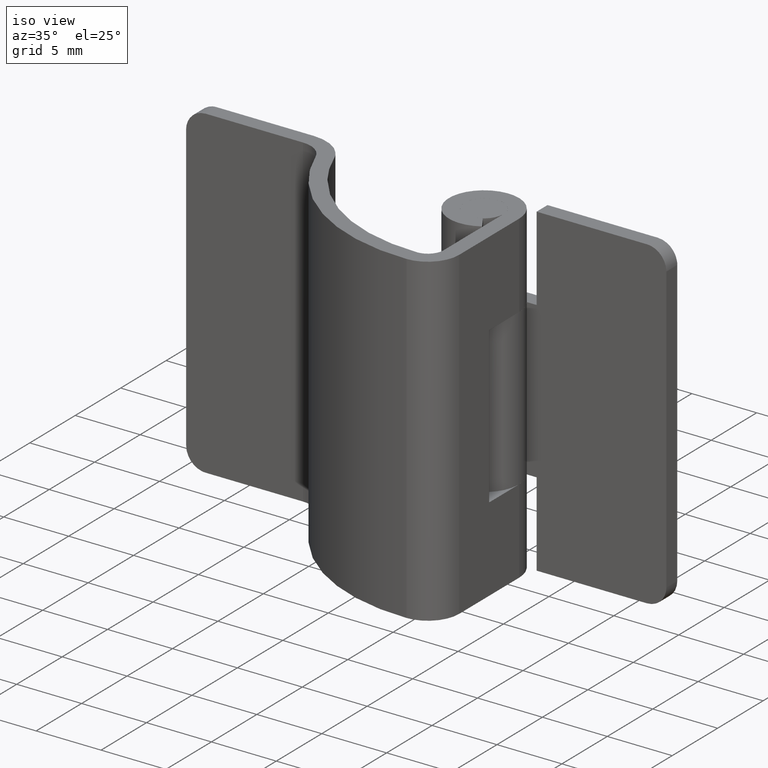
[diagram: clean part render]
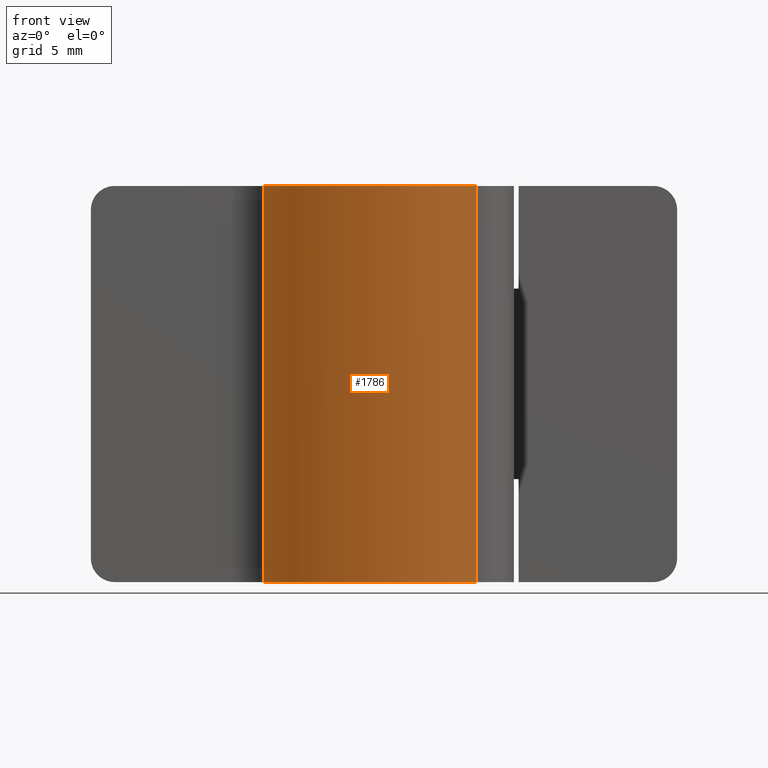
[diagram: tour spotlight — one face highlighted and labeled with its STEP entity id]
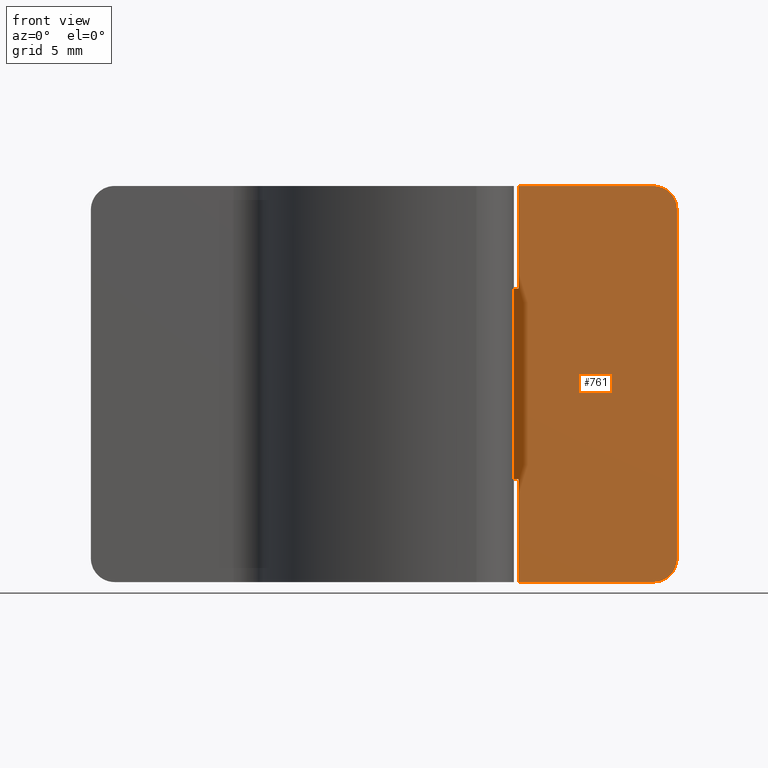
[diagram: tour spotlight — one face highlighted and labeled with its STEP entity id]
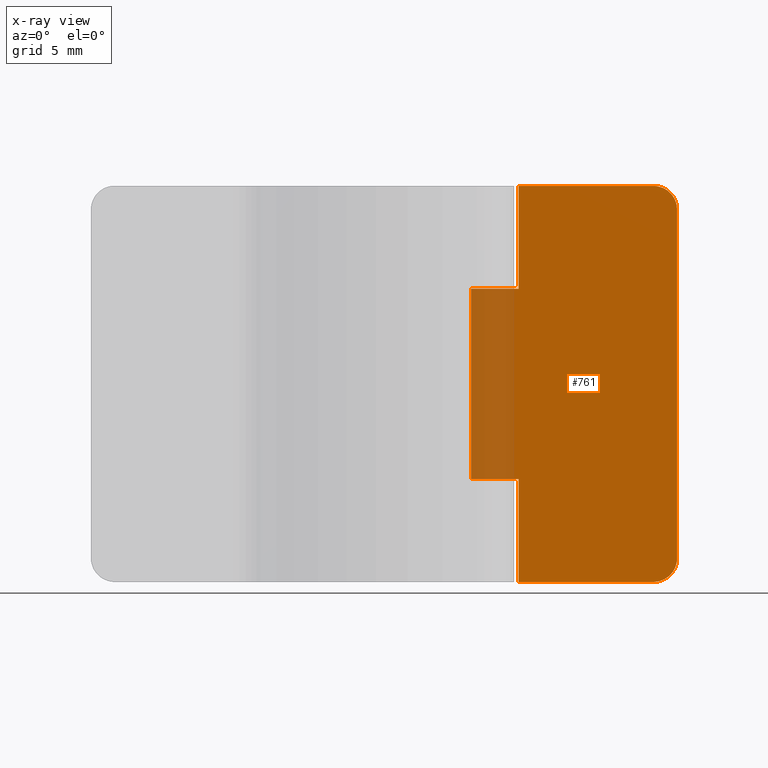
[diagram: x-ray of the same camera — body ghosted, this tour face saturated]
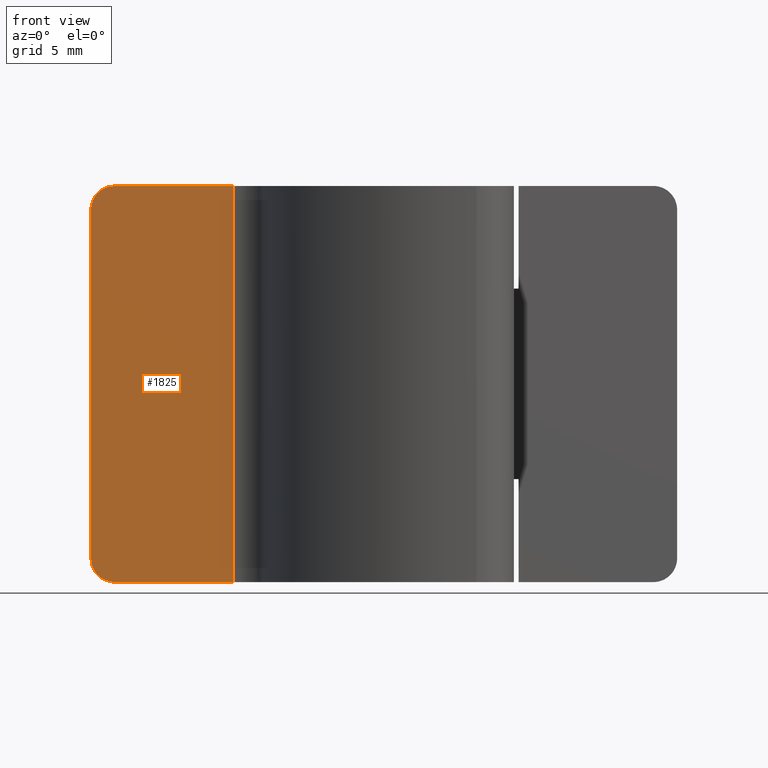
[diagram: tour spotlight — one face highlighted and labeled with its STEP entity id]
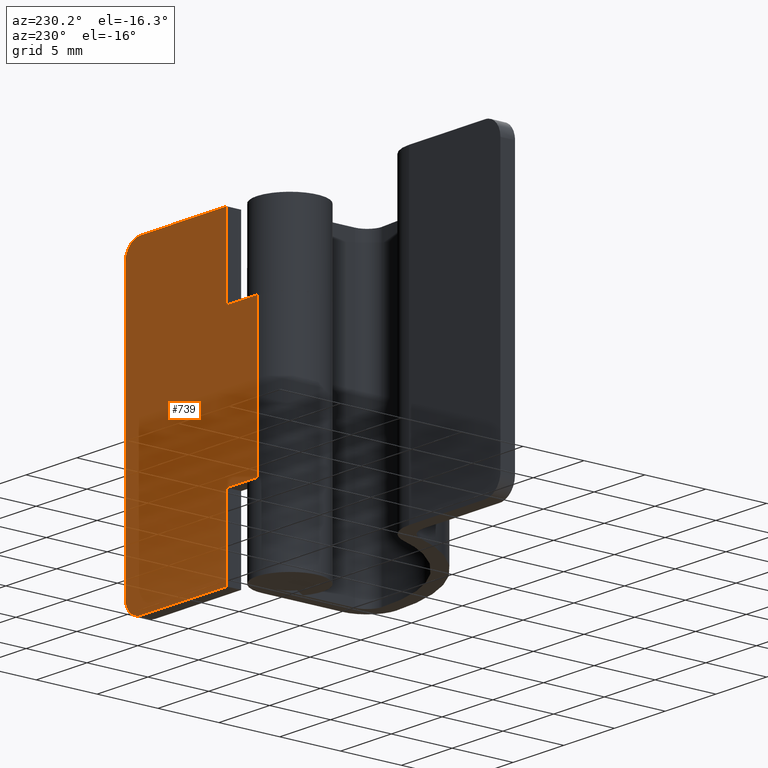
[diagram: tour spotlight — one face highlighted and labeled with its STEP entity id]
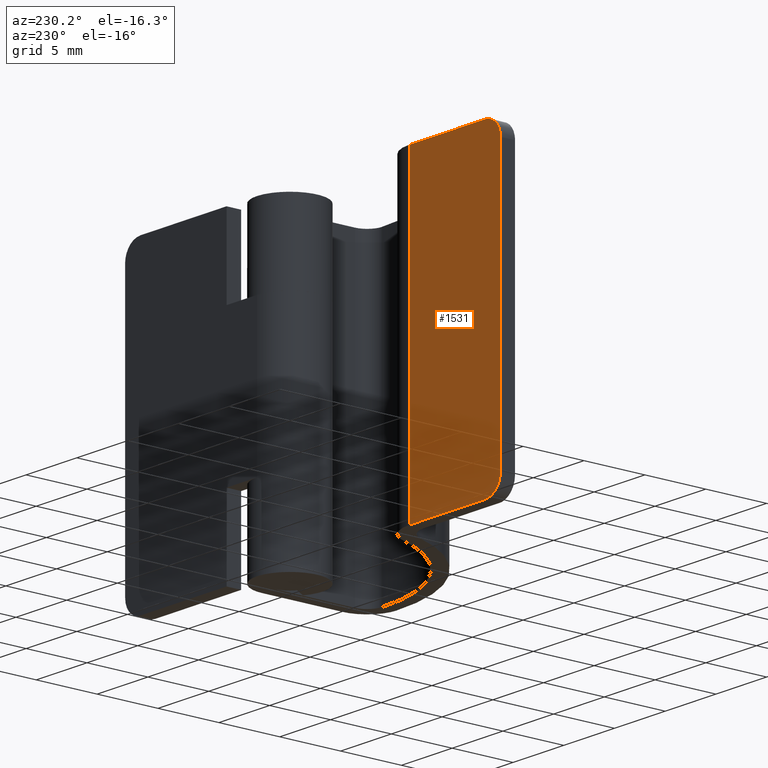
[diagram: tour spotlight — one face highlighted and labeled with its STEP entity id]
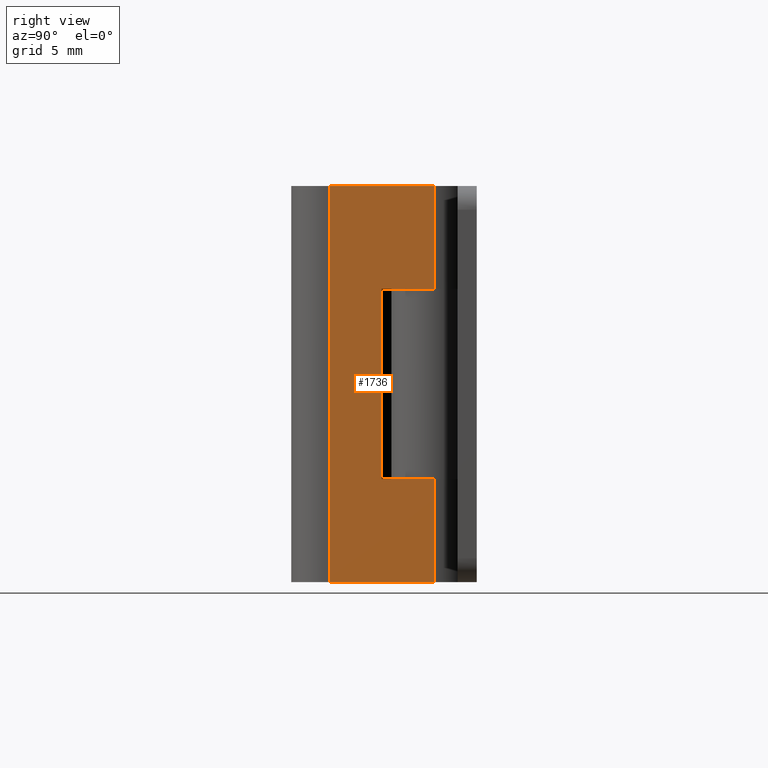
[diagram: tour spotlight — one face highlighted and labeled with its STEP entity id]
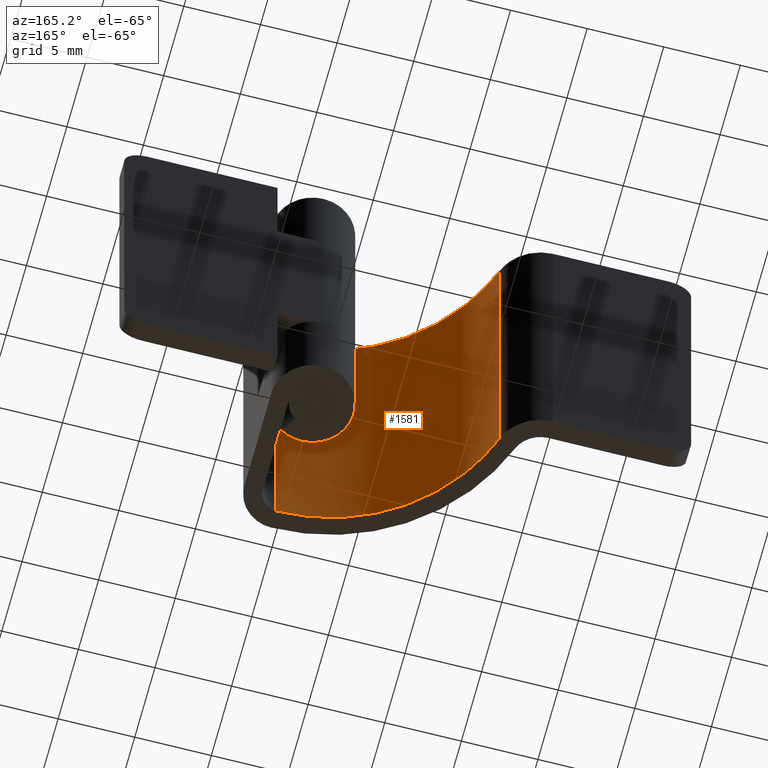
[diagram: tour spotlight — one face highlighted and labeled with its STEP entity id]
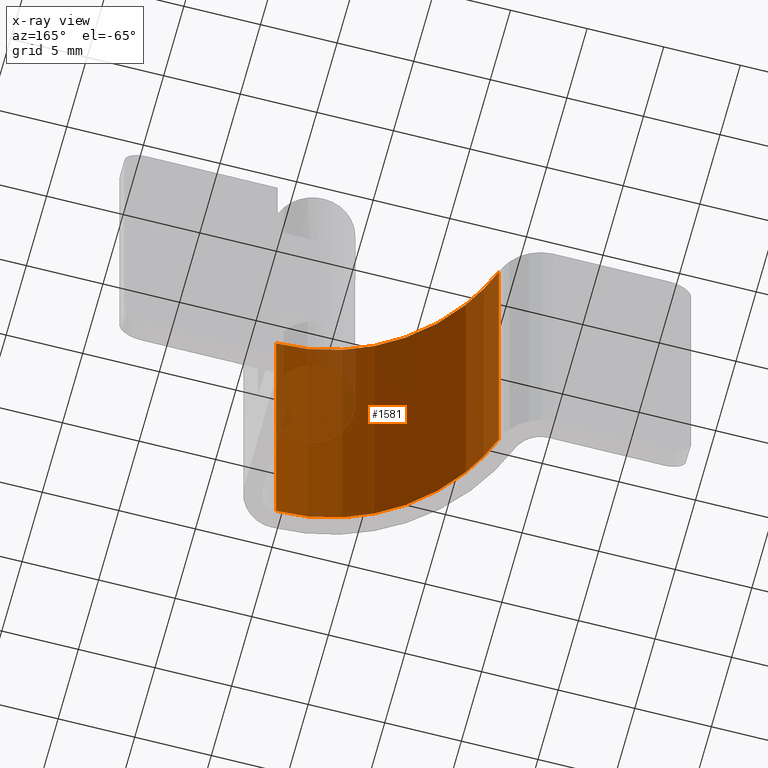
[diagram: x-ray of the same camera — body ghosted, this tour face saturated]
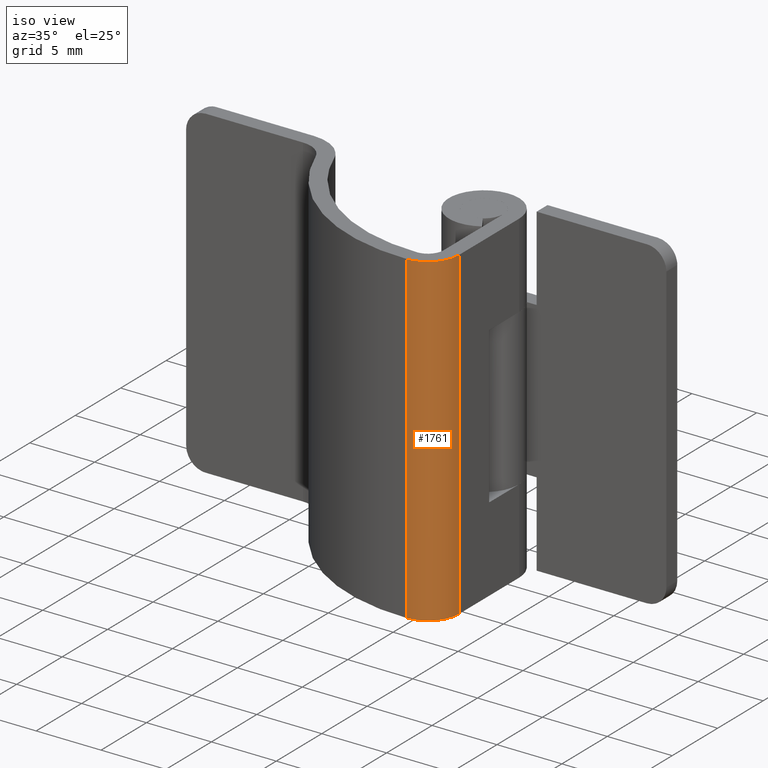
[diagram: tour spotlight — one face highlighted and labeled with its STEP entity id]
A machine part: a face-by-face anatomy tour. The part has 42 B-rep faces; the first image is the clean iso view, then the 8 largest visible faces are spotlighted one at a time (largest first), each with its STEP entity span.

Face 1 — front view, entity #1786. In plain terms, the highlighted face is a freeform B-spline surface patch.
Definition (entity closure, byte-faithful):
#1166=CARTESIAN_POINT('',(-13.127855933889640,0.203607777777776,25.000006999999950));
#1167=VERTEX_POINT('',#1166);
#1181=CARTESIAN_POINT('',(0.327577881356044,-8.999839294452860,25.000006999999950));
#1182=VERTEX_POINT('',#1181);
#1183=CARTESIAN_POINT('',(0.327577881356048,-8.999839294452874,25.000006999999950));
#1184=CARTESIAN_POINT('',(-9.625938804484882,-9.114232999671085,25.000006999999950));
#1185=CARTESIAN_POINT('',(-13.127855933889650,0.203607777777775,25.000006999999950));
#1193=(BOUNDED_CURVE()B_SPLINE_CURVE(2,(#1183,#1184,#1185),.UNSPECIFIED.,.F.,.U.)CURVE()GEOMETRIC_REPRESENTATION_ITEM()QUASI_UNIFORM_CURVE()RATIONAL_B_SPLINE_CURVE((1.0,0.818847747232917,1.0))REPRESENTATION_ITEM(''));
#1194=EDGE_CURVE('',#1182,#1167,#1193,.T.);
#1448=CARTESIAN_POINT('',(0.327577881356044,-8.999839294452860,0.0));
#1449=VERTEX_POINT('',#1448);
#1463=CARTESIAN_POINT('',(-13.127855933889640,0.203607777777776,0.0));
#1464=VERTEX_POINT('',#1463);
#1465=CARTESIAN_POINT('',(0.327577881356048,-8.999839294452874,0.0));
#1466=CARTESIAN_POINT('',(-9.625938804484882,-9.114232999671085,0.0));
#1467=CARTESIAN_POINT('',(-13.127855933889650,0.203607777777775,0.0));
#1475=(BOUNDED_CURVE()B_SPLINE_CURVE(2,(#1465,#1466,#1467),.UNSPECIFIED.,.F.,.U.)CURVE()GEOMETRIC_REPRESENTATION_ITEM()QUASI_UNIFORM_CURVE()RATIONAL_B_SPLINE_CURVE((1.0,0.818847747232917,1.0))REPRESENTATION_ITEM(''));
#1476=EDGE_CURVE('',#1449,#1464,#1475,.T.);
#1752=CARTESIAN_POINT('',(0.327577881356044,-8.999839294452860,0.0));
#1753=CARTESIAN_POINT('',(0.327577881356044,-8.999839294452860,25.000006999999950));
#1754=QUASI_UNIFORM_CURVE('',1,(#1752,#1753),.UNSPECIFIED.,.F.,.U.);
#1755=EDGE_CURVE('',#1449,#1182,#1754,.T.);
#1762=CARTESIAN_POINT('',(0.931738175385781,-8.980028683795853,-0.625000174999999));
#1763=CARTESIAN_POINT('',(0.931738175385781,-8.980028683795853,25.640632179374951));
#1764=CARTESIAN_POINT('',(-10.101438786933137,-9.577117822656479,-0.625000174999999));
#1765=CARTESIAN_POINT('',(-10.101438786933137,-9.577117822656479,25.640632179374951));
#1766=CARTESIAN_POINT('',(-13.391501224122113,0.971009901304225,-0.625000174999999));
#1767=CARTESIAN_POINT('',(-13.391501224122113,0.971009901304225,25.640632179374951));
#1775=(BOUNDED_SURFACE()B_SPLINE_SURFACE(1,2,((#1762,#1764,#1766),(#1763,#1765,#1767)),.UNSPECIFIED.,.F.,.F.,.U.)B_SPLINE_SURFACE_WITH_KNOTS((2,2),(3,3),(0.0,26.265632354374951),(0.0,19.495239183282120),.UNSPECIFIED.)GEOMETRIC_REPRESENTATION_ITEM()RATIONAL_B_SPLINE_SURFACE(((1.0,0.786329131347657,0.992685430684794),(1.0,0.786329131347657,0.992685430684794)))REPRESENTATION_ITEM('')SURFACE());
#1776=ORIENTED_EDGE('',*,*,#1194,.T.);
#1777=CARTESIAN_POINT('',(-13.127855933889640,0.203607777777776,0.0));
#1778=CARTESIAN_POINT('',(-13.127855933889640,0.203607777777776,25.000006999999950));
#1779=QUASI_UNIFORM_CURVE('',1,(#1777,#1778),.UNSPECIFIED.,.F.,.U.);
#1780=EDGE_CURVE('',#1464,#1167,#1779,.T.);
#1781=ORIENTED_EDGE('',*,*,#1780,.F.);
#1782=ORIENTED_EDGE('',*,*,#1476,.F.);
#1783=ORIENTED_EDGE('',*,*,#1755,.T.);
#1784=EDGE_LOOP('',(#1776,#1781,#1782,#1783));
#1785=FACE_OUTER_BOUND('',#1784,.T.);
#1786=ADVANCED_FACE('',(#1785),#1775,.T.);

Face 2 — front view, entity #761. An x-ray twin of the same camera follows (body ghosted, this face saturated) — the face is partly hidden behind the body. In plain terms, the highlighted face is a freeform B-spline surface patch.
Definition (entity closure, byte-faithful):
#296=CARTESIAN_POINT('',(-2.755372E-016,1.500000000000000,18.500006999999901));
#297=VERTEX_POINT('',#296);
#319=CARTESIAN_POINT('',(3.0,1.500000000000000,18.500006999999950));
#320=VERTEX_POINT('',#319);
#321=CARTESIAN_POINT('',(3.0,1.500000000000000,18.500006999999950));
#322=CARTESIAN_POINT('',(-2.755372E-016,1.500000000000000,18.500006999999901));
#323=QUASI_UNIFORM_CURVE('',1,(#321,#322),.UNSPECIFIED.,.F.,.U.);
#324=EDGE_CURVE('',#320,#297,#323,.T.);
#375=CARTESIAN_POINT('',(3.0,1.500000000000000,25.000006999999950));
#376=VERTEX_POINT('',#375);
#377=CARTESIAN_POINT('',(3.0,1.500000000000000,25.000006999999950));
#378=CARTESIAN_POINT('',(3.0,1.500000000000000,18.500006999999950));
#379=QUASI_UNIFORM_CURVE('',1,(#377,#378),.UNSPECIFIED.,.F.,.U.);
#380=EDGE_CURVE('',#376,#320,#379,.T.);
#432=CARTESIAN_POINT('',(3.0,1.500000000000000,6.500000000000000));
#433=VERTEX_POINT('',#432);
#439=CARTESIAN_POINT('',(-2.755372E-016,1.500000000000000,6.500000000000000));
#440=VERTEX_POINT('',#439);
#441=CARTESIAN_POINT('',(3.0,1.500000000000000,6.500000000000000));
#442=CARTESIAN_POINT('',(-2.755372E-016,1.500000000000000,6.500000000000000));
#443=QUASI_UNIFORM_CURVE('',1,(#441,#442),.UNSPECIFIED.,.F.,.U.);
#444=EDGE_CURVE('',#433,#440,#443,.T.);
#488=CARTESIAN_POINT('',(3.0,1.500000000000000,0.0));
#489=VERTEX_POINT('',#488);
#495=CARTESIAN_POINT('',(3.0,1.500000000000000,0.0));
#496=CARTESIAN_POINT('',(3.0,1.500000000000000,6.500000000000000));
#497=QUASI_UNIFORM_CURVE('',1,(#495,#496),.UNSPECIFIED.,.F.,.U.);
#498=EDGE_CURVE('',#489,#433,#497,.T.);
#517=CARTESIAN_POINT('',(13.0,1.500000000000000,23.500006999999901));
#518=VERTEX_POINT('',#517);
#519=CARTESIAN_POINT('',(11.500000000000000,1.500000000000000,25.000006999999950));
#520=VERTEX_POINT('',#519);
#521=CARTESIAN_POINT('',(13.0,1.500000000000000,23.500006999999901));
#522=CARTESIAN_POINT('',(13.000000000000002,1.500000000000000,25.000006999999901));
#523=CARTESIAN_POINT('',(11.500000000000000,1.500000000000000,25.000006999999901));
#531=(BOUNDED_CURVE()B_SPLINE_CURVE(2,(#521,#522,#523),.UNSPECIFIED.,.F.,.U.)CURVE()GEOMETRIC_REPRESENTATION_ITEM()QUASI_UNIFORM_CURVE()RATIONAL_B_SPLINE_CURVE((1.0,0.707106781186548,1.0))REPRESENTATION_ITEM(''));
#532=EDGE_CURVE('',#518,#520,#531,.T.);
#578=CARTESIAN_POINT('',(11.500000000000000,1.500000000000000,0.0));
#579=VERTEX_POINT('',#578);
#580=CARTESIAN_POINT('',(13.0,1.500000000000000,1.499999999999946));
#581=VERTEX_POINT('',#580);
#582=CARTESIAN_POINT('',(11.500000000000000,1.500000000000000,0.0));
#583=CARTESIAN_POINT('',(13.000000000000002,1.500000000000000,-5.399327E-014));
#584=CARTESIAN_POINT('',(13.0,1.500000000000000,1.499999999999946));
#592=(BOUNDED_CURVE()B_SPLINE_CURVE(2,(#582,#583,#584),.UNSPECIFIED.,.F.,.U.)CURVE()GEOMETRIC_REPRESENTATION_ITEM()QUASI_UNIFORM_CURVE()RATIONAL_B_SPLINE_CURVE((1.0,0.707106781186548,1.0))REPRESENTATION_ITEM(''));
#593=EDGE_CURVE('',#579,#581,#592,.T.);
#630=CARTESIAN_POINT('',(13.0,1.500000000000000,1.499999999999946));
#631=CARTESIAN_POINT('',(13.0,1.500000000000000,23.500006999999901));
#632=QUASI_UNIFORM_CURVE('',1,(#630,#631),.UNSPECIFIED.,.F.,.U.);
#633=EDGE_CURVE('',#581,#518,#632,.T.);
#650=CARTESIAN_POINT('',(3.0,1.500000000000000,0.0));
#651=CARTESIAN_POINT('',(11.500000000000000,1.500000000000000,0.0));
#652=QUASI_UNIFORM_CURVE('',1,(#650,#651),.UNSPECIFIED.,.F.,.U.);
#653=EDGE_CURVE('',#489,#579,#652,.T.);
#671=CARTESIAN_POINT('',(3.0,1.500000000000000,25.000006999999950));
#672=CARTESIAN_POINT('',(11.500000000000000,1.500000000000000,25.000006999999950));
#673=QUASI_UNIFORM_CURVE('',1,(#671,#672),.UNSPECIFIED.,.F.,.U.);
#674=EDGE_CURVE('',#376,#520,#673,.T.);
#740=CARTESIAN_POINT('',(-0.649349974803478,1.500000000000000,26.248758005241619));
#741=CARTESIAN_POINT('',(-0.649349974803478,1.500000000000000,-1.248751005241666));
#742=CARTESIAN_POINT('',(13.649350323490649,1.500000000000000,26.248758005241619));
#743=CARTESIAN_POINT('',(13.649350323490649,1.500000000000000,-1.248751005241666));
#744=B_SPLINE_SURFACE_WITH_KNOTS('',1,1,((#740,#742),(#741,#743)),.UNSPECIFIED.,.F.,.F.,.U.,(2,2),(2,2),(0.0,27.497509010483292),(0.0,14.298700298294129),.UNSPECIFIED.);
#745=ORIENTED_EDGE('',*,*,#674,.F.);
#746=ORIENTED_EDGE('',*,*,#380,.T.);
#747=ORIENTED_EDGE('',*,*,#324,.T.);
#748=CARTESIAN_POINT('',(-2.755372E-016,1.500000000000000,6.500000000000000));
#749=CARTESIAN_POINT('',(-2.755372E-016,1.500000000000000,18.500006999999901));
#750=QUASI_UNIFORM_CURVE('',1,(#748,#749),.UNSPECIFIED.,.F.,.U.);
#751=EDGE_CURVE('',#440,#297,#750,.T.);
#752=ORIENTED_EDGE('',*,*,#751,.F.);
#753=ORIENTED_EDGE('',*,*,#444,.F.);
#754=ORIENTED_EDGE('',*,*,#498,.F.);
#755=ORIENTED_EDGE('',*,*,#653,.T.);
#756=ORIENTED_EDGE('',*,*,#593,.T.);
#757=ORIENTED_EDGE('',*,*,#633,.T.);
#758=ORIENTED_EDGE('',*,*,#532,.T.);
#759=EDGE_LOOP('',(#745,#746,#747,#752,#753,#754,#755,#756,#757,#758));
#760=FACE_OUTER_BOUND('',#759,.T.);
#761=ADVANCED_FACE('',(#760),#744,.T.);

Face 3 — front view, entity #1825. In plain terms, the highlighted face is a freeform B-spline surface patch.
Definition (entity closure, byte-faithful):
#1055=CARTESIAN_POINT('',(-24.0,1.500000000000000,23.500006999999901));
#1056=VERTEX_POINT('',#1055);
#1062=CARTESIAN_POINT('',(-22.500000000000000,1.500000000000000,25.000006999999950));
#1063=VERTEX_POINT('',#1062);
#1064=CARTESIAN_POINT('',(-22.500000000000000,1.500000000000000,25.000006999999901));
#1065=CARTESIAN_POINT('',(-23.999999999999996,1.500000000000000,25.000006999999901));
#1066=CARTESIAN_POINT('',(-24.0,1.500000000000000,23.500006999999901));
#1074=(BOUNDED_CURVE()B_SPLINE_CURVE(2,(#1064,#1065,#1066),.UNSPECIFIED.,.F.,.U.)CURVE()GEOMETRIC_REPRESENTATION_ITEM()QUASI_UNIFORM_CURVE()RATIONAL_B_SPLINE_CURVE((1.0,0.707106781186548,1.0))REPRESENTATION_ITEM(''));
#1075=EDGE_CURVE('',#1063,#1056,#1074,.T.);
#1116=CARTESIAN_POINT('',(-22.500000000000000,1.500000000000000,0.0));
#1117=VERTEX_POINT('',#1116);
#1123=CARTESIAN_POINT('',(-24.0,1.500000000000000,1.499999999999946));
#1124=VERTEX_POINT('',#1123);
#1125=CARTESIAN_POINT('',(-24.0,1.500000000000000,1.499999999999946));
#1126=CARTESIAN_POINT('',(-23.999999999999996,1.500000000000000,-5.399327E-014));
#1127=CARTESIAN_POINT('',(-22.500000000000000,1.500000000000000,-5.399327E-014));
#1135=(BOUNDED_CURVE()B_SPLINE_CURVE(2,(#1125,#1126,#1127),.UNSPECIFIED.,.F.,.U.)CURVE()GEOMETRIC_REPRESENTATION_ITEM()QUASI_UNIFORM_CURVE()RATIONAL_B_SPLINE_CURVE((1.0,0.707106781186548,1.0))REPRESENTATION_ITEM(''));
#1136=EDGE_CURVE('',#1124,#1117,#1135,.T.);
#1159=CARTESIAN_POINT('',(-15.000003389367050,1.500000000000000,25.000006999999950));
#1160=VERTEX_POINT('',#1159);
#1161=CARTESIAN_POINT('',(-22.500000000000000,1.500000000000000,25.000006999999950));
#1162=CARTESIAN_POINT('',(-15.000003389367050,1.500000000000000,25.000006999999950));
#1163=QUASI_UNIFORM_CURVE('',1,(#1161,#1162),.UNSPECIFIED.,.F.,.U.);
#1164=EDGE_CURVE('',#1063,#1160,#1163,.T.);
#1325=CARTESIAN_POINT('',(-15.000003389367050,1.500000000000000,0.0));
#1326=VERTEX_POINT('',#1325);
#1327=CARTESIAN_POINT('',(-22.500000000000000,1.500000000000000,0.0));
#1328=CARTESIAN_POINT('',(-15.000003389367050,1.500000000000000,0.0));
#1329=QUASI_UNIFORM_CURVE('',1,(#1327,#1328),.UNSPECIFIED.,.F.,.U.);
#1330=EDGE_CURVE('',#1117,#1326,#1329,.T.);
#1505=CARTESIAN_POINT('',(-24.0,1.500000000000000,1.499999999999946));
#1506=CARTESIAN_POINT('',(-24.0,1.500000000000000,23.500006999999901));
#1507=QUASI_UNIFORM_CURVE('',1,(#1505,#1506),.UNSPECIFIED.,.F.,.U.);
#1508=EDGE_CURVE('',#1124,#1056,#1507,.T.);
#1802=CARTESIAN_POINT('',(-15.000003389367050,1.500000000000000,0.0));
#1803=CARTESIAN_POINT('',(-15.000003389367050,1.500000000000000,25.000006999999950));
#1804=QUASI_UNIFORM_CURVE('',1,(#1802,#1803),.UNSPECIFIED.,.F.,.U.);
#1805=EDGE_CURVE('',#1326,#1160,#1804,.T.);
#1812=CARTESIAN_POINT('',(-24.449549781103070,1.500000000000000,26.248758005241619));
#1813=CARTESIAN_POINT('',(-24.449549781103070,1.500000000000000,-1.248751005241666));
#1814=CARTESIAN_POINT('',(-14.550454010595180,1.500000000000000,26.248758005241619));
#1815=CARTESIAN_POINT('',(-14.550454010595180,1.500000000000000,-1.248751005241666));
#1816=B_SPLINE_SURFACE_WITH_KNOTS('',1,1,((#1812,#1814),(#1813,#1815)),.UNSPECIFIED.,.F.,.F.,.U.,(2,2),(2,2),(0.0,27.497509010483292),(0.0,9.899095770507890),.UNSPECIFIED.);
#1817=ORIENTED_EDGE('',*,*,#1508,.F.);
#1818=ORIENTED_EDGE('',*,*,#1136,.T.);
#1819=ORIENTED_EDGE('',*,*,#1330,.T.);
#1820=ORIENTED_EDGE('',*,*,#1805,.T.);
#1821=ORIENTED_EDGE('',*,*,#1164,.F.);
#1822=ORIENTED_EDGE('',*,*,#1075,.T.);
#1823=EDGE_LOOP('',(#1817,#1818,#1819,#1820,#1821,#1822));
#1824=FACE_OUTER_BOUND('',#1823,.T.);
#1825=ADVANCED_FACE('',(#1824),#1816,.T.);

Face 4 — auxiliary view, entity #739. In plain terms, the highlighted face is a freeform B-spline surface patch.
Definition (entity closure, byte-faithful):
#326=CARTESIAN_POINT('',(3.0,2.700001000000000,18.500006999999950));
#327=VERTEX_POINT('',#326);
#333=CARTESIAN_POINT('',(-4.959658E-016,2.700001000000000,18.500006999999950));
#334=VERTEX_POINT('',#333);
#335=CARTESIAN_POINT('',(-4.959658E-016,2.700001000000000,18.500006999999950));
#336=CARTESIAN_POINT('',(3.0,2.700001000000000,18.500006999999950));
#337=QUASI_UNIFORM_CURVE('',1,(#335,#336),.UNSPECIFIED.,.F.,.U.);
#338=EDGE_CURVE('',#334,#327,#337,.T.);
#382=CARTESIAN_POINT('',(3.0,2.700001000000000,25.000006999999901));
#383=VERTEX_POINT('',#382);
#389=CARTESIAN_POINT('',(3.0,2.700001000000000,25.000006999999901));
#390=CARTESIAN_POINT('',(3.0,2.700001000000000,18.500006999999950));
#391=QUASI_UNIFORM_CURVE('',1,(#389,#390),.UNSPECIFIED.,.F.,.U.);
#392=EDGE_CURVE('',#383,#327,#391,.T.);
#404=CARTESIAN_POINT('',(-4.959658E-016,2.700001000000000,6.500000000000000));
#405=VERTEX_POINT('',#404);
#425=CARTESIAN_POINT('',(3.0,2.700001000000000,6.500000000000000));
#426=VERTEX_POINT('',#425);
#427=CARTESIAN_POINT('',(-4.959658E-016,2.700001000000000,6.500000000000000));
#428=CARTESIAN_POINT('',(3.0,2.700001000000000,6.500000000000000));
#429=QUASI_UNIFORM_CURVE('',1,(#427,#428),.UNSPECIFIED.,.F.,.U.);
#430=EDGE_CURVE('',#405,#426,#429,.T.);
#481=CARTESIAN_POINT('',(3.0,2.700001000000000,0.0));
#482=VERTEX_POINT('',#481);
#483=CARTESIAN_POINT('',(3.0,2.700001000000000,0.0));
#484=CARTESIAN_POINT('',(3.0,2.700001000000000,6.500000000000000));
#485=QUASI_UNIFORM_CURVE('',1,(#483,#484),.UNSPECIFIED.,.F.,.U.);
#486=EDGE_CURVE('',#482,#426,#485,.T.);
#534=CARTESIAN_POINT('',(13.0,2.700001000000000,23.500006999999901));
#535=VERTEX_POINT('',#534);
#541=CARTESIAN_POINT('',(11.500000000000000,2.700001000000000,25.000006999999950));
#542=VERTEX_POINT('',#541);
#543=CARTESIAN_POINT('',(11.500000000000000,2.700001000000000,25.000006999999901));
#544=CARTESIAN_POINT('',(13.000000000000002,2.700001000000000,25.000006999999901));
#545=CARTESIAN_POINT('',(13.0,2.700001000000000,23.500006999999901));
#553=(BOUNDED_CURVE()B_SPLINE_CURVE(2,(#543,#544,#545),.UNSPECIFIED.,.F.,.U.)CURVE()GEOMETRIC_REPRESENTATION_ITEM()QUASI_UNIFORM_CURVE()RATIONAL_B_SPLINE_CURVE((1.0,0.707106781186548,1.0))REPRESENTATION_ITEM(''));
#554=EDGE_CURVE('',#542,#535,#553,.T.);
#595=CARTESIAN_POINT('',(11.500000000000000,2.700001000000000,0.0));
#596=VERTEX_POINT('',#595);
#602=CARTESIAN_POINT('',(13.0,2.700001000000000,1.499999999999946));
#603=VERTEX_POINT('',#602);
#604=CARTESIAN_POINT('',(13.0,2.700001000000000,1.499999999999946));
#605=CARTESIAN_POINT('',(13.000000000000002,2.700001000000000,-5.399327E-014));
#606=CARTESIAN_POINT('',(11.500000000000000,2.700001000000000,0.0));
#614=(BOUNDED_CURVE()B_SPLINE_CURVE(2,(#604,#605,#606),.UNSPECIFIED.,.F.,.U.)CURVE()GEOMETRIC_REPRESENTATION_ITEM()QUASI_UNIFORM_CURVE()RATIONAL_B_SPLINE_CURVE((1.0,0.707106781186548,1.0))REPRESENTATION_ITEM(''));
#615=EDGE_CURVE('',#603,#596,#614,.T.);
#636=CARTESIAN_POINT('',(13.0,2.700001000000000,1.499999999999946));
#637=CARTESIAN_POINT('',(13.0,2.700001000000000,23.500006999999901));
#638=QUASI_UNIFORM_CURVE('',1,(#636,#637),.UNSPECIFIED.,.F.,.U.);
#639=EDGE_CURVE('',#603,#535,#638,.T.);
#656=CARTESIAN_POINT('',(11.500000000000000,2.700001000000000,0.0));
#657=CARTESIAN_POINT('',(3.0,2.700001000000000,0.0));
#658=QUASI_UNIFORM_CURVE('',1,(#656,#657),.UNSPECIFIED.,.F.,.U.);
#659=EDGE_CURVE('',#596,#482,#658,.T.);
#677=CARTESIAN_POINT('',(11.500000000000000,2.700001000000000,25.000006999999950));
#678=CARTESIAN_POINT('',(3.0,2.700001000000000,25.000006999999901));
#679=QUASI_UNIFORM_CURVE('',1,(#677,#678),.UNSPECIFIED.,.F.,.U.);
#680=EDGE_CURVE('',#542,#383,#679,.T.);
#708=CARTESIAN_POINT('',(-4.959658E-016,2.700001000000000,6.500000000000000));
#709=CARTESIAN_POINT('',(-4.959658E-016,2.700001000000000,18.500006999999950));
#710=QUASI_UNIFORM_CURVE('',1,(#708,#709),.UNSPECIFIED.,.F.,.U.);
#711=EDGE_CURVE('',#405,#334,#710,.T.);
#722=CARTESIAN_POINT('',(-0.649349974803480,2.700001000000000,-1.248750301195132));
#723=CARTESIAN_POINT('',(-0.649349974803480,2.700001000000000,26.248757971747530));
#724=CARTESIAN_POINT('',(13.649350323490649,2.700001000000000,-1.248750301195132));
#725=CARTESIAN_POINT('',(13.649350323490649,2.700001000000000,26.248757971747530));
#726=B_SPLINE_SURFACE_WITH_KNOTS('',1,1,((#722,#724),(#723,#725)),.UNSPECIFIED.,.F.,.F.,.U.,(2,2),(2,2),(0.0,27.497508272942660),(0.0,14.298700298294129),.UNSPECIFIED.);
#727=ORIENTED_EDGE('',*,*,#338,.T.);
#728=ORIENTED_EDGE('',*,*,#392,.F.);
#729=ORIENTED_EDGE('',*,*,#680,.F.);
#730=ORIENTED_EDGE('',*,*,#554,.T.);
#731=ORIENTED_EDGE('',*,*,#639,.F.);
#732=ORIENTED_EDGE('',*,*,#615,.T.);
#733=ORIENTED_EDGE('',*,*,#659,.T.);
#734=ORIENTED_EDGE('',*,*,#486,.T.);
#735=ORIENTED_EDGE('',*,*,#430,.F.);
#736=ORIENTED_EDGE('',*,*,#711,.T.);
#737=EDGE_LOOP('',(#727,#728,#729,#730,#731,#732,#733,#734,#735,#736));
#738=FACE_OUTER_BOUND('',#737,.T.);
#739=ADVANCED_FACE('',(#738),#726,.T.);

Face 5 — auxiliary view, entity #1531. In plain terms, the highlighted face is a freeform B-spline surface patch.
Definition (entity closure, byte-faithful):
#1038=CARTESIAN_POINT('',(-24.0,2.700001000000000,23.500006999999901));
#1039=VERTEX_POINT('',#1038);
#1040=CARTESIAN_POINT('',(-22.500000000000000,2.700001000000000,25.000006999999950));
#1041=VERTEX_POINT('',#1040);
#1042=CARTESIAN_POINT('',(-24.0,2.700001000000000,23.500006999999901));
#1043=CARTESIAN_POINT('',(-23.999999999999996,2.700001000000000,25.000006999999901));
#1044=CARTESIAN_POINT('',(-22.500000000000000,2.700001000000000,25.000006999999901));
#1052=(BOUNDED_CURVE()B_SPLINE_CURVE(2,(#1042,#1043,#1044),.UNSPECIFIED.,.F.,.U.)CURVE()GEOMETRIC_REPRESENTATION_ITEM()QUASI_UNIFORM_CURVE()RATIONAL_B_SPLINE_CURVE((1.0,0.707106781186548,1.0))REPRESENTATION_ITEM(''));
#1053=EDGE_CURVE('',#1039,#1041,#1052,.T.);
#1099=CARTESIAN_POINT('',(-22.500000000000000,2.700001000000000,0.0));
#1100=VERTEX_POINT('',#1099);
#1101=CARTESIAN_POINT('',(-24.0,2.700001000000000,1.499999999999946));
#1102=VERTEX_POINT('',#1101);
#1103=CARTESIAN_POINT('',(-22.500000000000000,2.700001000000000,-5.399327E-014));
#1104=CARTESIAN_POINT('',(-23.999999999999996,2.700001000000000,-5.399327E-014));
#1105=CARTESIAN_POINT('',(-24.0,2.700001000000000,1.499999999999946));
#1113=(BOUNDED_CURVE()B_SPLINE_CURVE(2,(#1103,#1104,#1105),.UNSPECIFIED.,.F.,.U.)CURVE()GEOMETRIC_REPRESENTATION_ITEM()QUASI_UNIFORM_CURVE()RATIONAL_B_SPLINE_CURVE((1.0,0.707106781186548,1.0))REPRESENTATION_ITEM(''));
#1114=EDGE_CURVE('',#1100,#1102,#1113,.T.);
#1151=CARTESIAN_POINT('',(-15.000003765196301,2.700001000000000,25.000006999999950));
#1152=VERTEX_POINT('',#1151);
#1153=CARTESIAN_POINT('',(-15.000003765196301,2.700001000000000,25.000006999999950));
#1154=CARTESIAN_POINT('',(-22.500000000000000,2.700001000000000,25.000006999999950));
#1155=QUASI_UNIFORM_CURVE('',1,(#1153,#1154),.UNSPECIFIED.,.F.,.U.);
#1156=EDGE_CURVE('',#1152,#1041,#1155,.T.);
#1333=CARTESIAN_POINT('',(-15.000003765196301,2.700001000000000,0.0));
#1334=VERTEX_POINT('',#1333);
#1335=CARTESIAN_POINT('',(-15.000003765196301,2.700001000000000,0.0));
#1336=CARTESIAN_POINT('',(-22.500000000000000,2.700001000000000,0.0));
#1337=QUASI_UNIFORM_CURVE('',1,(#1335,#1336),.UNSPECIFIED.,.F.,.U.);
#1338=EDGE_CURVE('',#1334,#1100,#1337,.T.);
#1499=CARTESIAN_POINT('',(-24.0,2.700001000000000,1.499999999999946));
#1500=CARTESIAN_POINT('',(-24.0,2.700001000000000,23.500006999999901));
#1501=QUASI_UNIFORM_CURVE('',1,(#1499,#1500),.UNSPECIFIED.,.F.,.U.);
#1502=EDGE_CURVE('',#1102,#1039,#1501,.T.);
#1514=CARTESIAN_POINT('',(-24.449549794484710,2.700001000000000,-1.248750301195132));
#1515=CARTESIAN_POINT('',(-24.449549794484710,2.700001000000000,26.248757971747530));
#1516=CARTESIAN_POINT('',(-14.550453729312880,2.700001000000000,-1.248750301195132));
#1517=CARTESIAN_POINT('',(-14.550453729312880,2.700001000000000,26.248757971747530));
#1518=B_SPLINE_SURFACE_WITH_KNOTS('',1,1,((#1514,#1516),(#1515,#1517)),.UNSPECIFIED.,.F.,.F.,.U.,(2,2),(2,2),(0.0,27.497508272942660),(0.0,9.899096065171831),.UNSPECIFIED.);
#1519=ORIENTED_EDGE('',*,*,#1338,.T.);
#1520=ORIENTED_EDGE('',*,*,#1114,.T.);
#1521=ORIENTED_EDGE('',*,*,#1502,.T.);
#1522=ORIENTED_EDGE('',*,*,#1053,.T.);
#1523=ORIENTED_EDGE('',*,*,#1156,.F.);
#1524=CARTESIAN_POINT('',(-15.000003765196301,2.700001000000000,0.0));
#1525=CARTESIAN_POINT('',(-15.000003765196301,2.700001000000000,25.000006999999950));
#1526=QUASI_UNIFORM_CURVE('',1,(#1524,#1525),.UNSPECIFIED.,.F.,.U.);
#1527=EDGE_CURVE('',#1334,#1152,#1526,.T.);
#1528=ORIENTED_EDGE('',*,*,#1527,.F.);
#1529=EDGE_LOOP('',(#1519,#1520,#1521,#1522,#1523,#1528));
#1530=FACE_OUTER_BOUND('',#1529,.T.);
#1531=ADVANCED_FACE('',(#1530),#1518,.T.);

Face 6 — right view, entity #1736. In plain terms, the highlighted face is a freeform B-spline surface patch.
Definition (entity closure, byte-faithful):
#853=CARTESIAN_POINT('',(2.699997000000120,-3.299987999999900,6.500000000000000));
#854=VERTEX_POINT('',#853);
#855=CARTESIAN_POINT('',(2.699997000000110,0.004024921167900,6.500000000000000));
#856=VERTEX_POINT('',#855);
#857=CARTESIAN_POINT('',(2.699997000000120,-3.299987999999900,6.500000000000000));
#858=CARTESIAN_POINT('',(2.699997000000110,0.004024921167900,6.500000000000000));
#859=QUASI_UNIFORM_CURVE('',1,(#857,#858),.UNSPECIFIED.,.F.,.U.);
#860=EDGE_CURVE('',#854,#856,#859,.T.);
#931=CARTESIAN_POINT('',(2.699997000000120,-3.299987999999900,18.500006999999901));
#932=VERTEX_POINT('',#931);
#933=CARTESIAN_POINT('',(2.699997000000120,-3.299987999999900,18.500006999999901));
#934=CARTESIAN_POINT('',(2.699997000000120,-3.299987999999900,6.500000000000000));
#935=QUASI_UNIFORM_CURVE('',1,(#933,#934),.UNSPECIFIED.,.F.,.U.);
#936=EDGE_CURVE('',#932,#854,#935,.T.);
#959=CARTESIAN_POINT('',(2.699997000000110,0.004024921167900,18.500006999999901));
#960=VERTEX_POINT('',#959);
#961=CARTESIAN_POINT('',(2.699997000000110,0.004024921167900,18.500006999999901));
#962=CARTESIAN_POINT('',(2.699997000000120,-3.299987999999900,18.500006999999901));
#963=QUASI_UNIFORM_CURVE('',1,(#961,#962),.UNSPECIFIED.,.F.,.U.);
#964=EDGE_CURVE('',#960,#932,#963,.T.);
#1196=CARTESIAN_POINT('',(2.699997000000110,-6.599997779897450,25.000006999999950));
#1197=VERTEX_POINT('',#1196);
#1211=CARTESIAN_POINT('',(2.699997000000110,0.004024921167900,25.000006999999950));
#1212=VERTEX_POINT('',#1211);
#1213=CARTESIAN_POINT('',(2.699997000000110,-6.599997779897450,25.000006999999950));
#1214=CARTESIAN_POINT('',(2.699997000000110,0.004024921167900,25.000006999999950));
#1215=QUASI_UNIFORM_CURVE('',1,(#1213,#1214),.UNSPECIFIED.,.F.,.U.);
#1216=EDGE_CURVE('',#1197,#1212,#1215,.T.);
#1420=CARTESIAN_POINT('',(2.699997000000110,0.004024921167900,0.0));
#1421=VERTEX_POINT('',#1420);
#1441=CARTESIAN_POINT('',(2.699997000000110,-6.599997779897450,0.0));
#1442=VERTEX_POINT('',#1441);
#1443=CARTESIAN_POINT('',(2.699997000000110,-6.599997779897450,0.0));
#1444=CARTESIAN_POINT('',(2.699997000000110,0.004024921167900,0.0));
#1445=QUASI_UNIFORM_CURVE('',1,(#1443,#1444),.UNSPECIFIED.,.F.,.U.);
#1446=EDGE_CURVE('',#1442,#1421,#1445,.T.);
#1704=CARTESIAN_POINT('',(2.699997000000110,0.004024921167900,0.0));
#1705=CARTESIAN_POINT('',(2.699997000000110,0.004024921167900,6.500000000000000));
#1706=QUASI_UNIFORM_CURVE('',1,(#1704,#1705),.UNSPECIFIED.,.F.,.U.);
#1707=EDGE_CURVE('',#1421,#856,#1706,.T.);
#1713=CARTESIAN_POINT('',(2.699997000000110,-6.929868948991148,26.248758005241619));
#1714=CARTESIAN_POINT('',(2.699997000000110,-6.929868948991148,-1.248751005241666));
#1715=CARTESIAN_POINT('',(2.699997000000110,0.333896031217033,26.248758005241619));
#1716=CARTESIAN_POINT('',(2.699997000000110,0.333896031217033,-1.248751005241666));
#1717=B_SPLINE_SURFACE_WITH_KNOTS('',1,1,((#1713,#1715),(#1714,#1716)),.UNSPECIFIED.,.F.,.F.,.U.,(2,2),(2,2),(0.0,27.497509010483292),(0.0,7.263764980208181),.UNSPECIFIED.);
#1718=ORIENTED_EDGE('',*,*,#964,.F.);
#1719=CARTESIAN_POINT('',(2.699997000000110,0.004024921167900,18.500006999999901));
#1720=CARTESIAN_POINT('',(2.699997000000110,0.004024921167900,25.000006999999950));
#1721=QUASI_UNIFORM_CURVE('',1,(#1719,#1720),.UNSPECIFIED.,.F.,.U.);
#1722=EDGE_CURVE('',#960,#1212,#1721,.T.);
#1723=ORIENTED_EDGE('',*,*,#1722,.T.);
#1724=ORIENTED_EDGE('',*,*,#1216,.F.);
#1725=CARTESIAN_POINT('',(2.699997000000110,-6.599997779897450,0.0));
#1726=CARTESIAN_POINT('',(2.699997000000110,-6.599997779897450,25.000006999999950));
#1727=QUASI_UNIFORM_CURVE('',1,(#1725,#1726),.UNSPECIFIED.,.F.,.U.);
#1728=EDGE_CURVE('',#1442,#1197,#1727,.T.);
#1729=ORIENTED_EDGE('',*,*,#1728,.F.);
#1730=ORIENTED_EDGE('',*,*,#1446,.T.);
#1731=ORIENTED_EDGE('',*,*,#1707,.T.);
#1732=ORIENTED_EDGE('',*,*,#860,.F.);
#1733=ORIENTED_EDGE('',*,*,#936,.F.);
#1734=EDGE_LOOP('',(#1718,#1723,#1724,#1729,#1730,#1731,#1732,#1733));
#1735=FACE_OUTER_BOUND('',#1734,.T.);
#1736=ADVANCED_FACE('',(#1735),#1717,.T.);

Face 7 — auxiliary view, entity #1581. An x-ray twin of the same camera follows (body ghosted, this face saturated) — the face is partly hidden behind the body. In plain terms, the highlighted face is a freeform B-spline surface patch.
Definition (entity closure, byte-faithful):
#1274=CARTESIAN_POINT('',(0.313790745762814,-7.799918499190090,25.000006999999950));
#1275=VERTEX_POINT('',#1274);
#1289=CARTESIAN_POINT('',(-12.004567762194521,0.625773246913583,25.000006999999950));
#1290=VERTEX_POINT('',#1289);
#1291=CARTESIAN_POINT('',(0.313790745762814,-7.799918499190093,25.000006999999950));
#1292=CARTESIAN_POINT('',(-8.798586762132912,-7.904647483258636,25.000006999999947));
#1293=CARTESIAN_POINT('',(-12.004567762194529,0.625773246913579,25.000006999999950));
#1301=(BOUNDED_CURVE()B_SPLINE_CURVE(2,(#1291,#1292,#1293),.UNSPECIFIED.,.F.,.U.)CURVE()GEOMETRIC_REPRESENTATION_ITEM()QUASI_UNIFORM_CURVE()RATIONAL_B_SPLINE_CURVE((1.0,0.818847655334349,1.0))REPRESENTATION_ITEM(''));
#1302=EDGE_CURVE('',#1275,#1290,#1301,.T.);
#1340=CARTESIAN_POINT('',(-12.004567762194521,0.625773246913583,0.0));
#1341=VERTEX_POINT('',#1340);
#1355=CARTESIAN_POINT('',(0.313790745762814,-7.799918499190090,0.0));
#1356=VERTEX_POINT('',#1355);
#1357=CARTESIAN_POINT('',(0.313790745762814,-7.799918499190093,0.0));
#1358=CARTESIAN_POINT('',(-8.798586762132912,-7.904647483258636,0.0));
#1359=CARTESIAN_POINT('',(-12.004567762194529,0.625773246913579,0.0));
#1367=(BOUNDED_CURVE()B_SPLINE_CURVE(2,(#1357,#1358,#1359),.UNSPECIFIED.,.F.,.U.)CURVE()GEOMETRIC_REPRESENTATION_ITEM()QUASI_UNIFORM_CURVE()RATIONAL_B_SPLINE_CURVE((1.0,0.818847655334349,1.0))REPRESENTATION_ITEM(''));
#1368=EDGE_CURVE('',#1356,#1341,#1367,.T.);
#1547=CARTESIAN_POINT('',(-12.004567762194521,0.625773246913583,0.0));
#1548=CARTESIAN_POINT('',(-12.004567762194521,0.625773246913583,25.000006999999950));
#1549=QUASI_UNIFORM_CURVE('',1,(#1547,#1548),.UNSPECIFIED.,.F.,.U.);
#1550=EDGE_CURVE('',#1341,#1290,#1549,.T.);
#1557=CARTESIAN_POINT('',(0.880663138779091,-7.781029471474074,-0.625000174999999));
#1558=CARTESIAN_POINT('',(0.880663138779091,-7.781029471474074,25.640632179374951));
#1559=CARTESIAN_POINT('',(-9.228694546233641,-8.338880812704842,-0.625000174999999));
#1560=CARTESIAN_POINT('',(-9.228694546233641,-8.338880812704842,25.640632179374961));
#1561=CARTESIAN_POINT('',(-12.245223111098866,1.326048899392968,-0.625000174999999));
#1562=CARTESIAN_POINT('',(-12.245223111098866,1.326048899392968,25.640632179374954));
#1570=(BOUNDED_SURFACE()B_SPLINE_SURFACE(1,2,((#1557,#1559,#1561),(#1558,#1560,#1562)),.UNSPECIFIED.,.F.,.F.,.U.)B_SPLINE_SURFACE_WITH_KNOTS((2,2),(3,3),(0.0,26.265632354374951),(0.0,17.860573798519130),.UNSPECIFIED.)GEOMETRIC_REPRESENTATION_ITEM()RATIONAL_B_SPLINE_SURFACE(((1.0,0.788537014434667,0.998950091216828),(1.0,0.788537014434667,0.998950091216828)))REPRESENTATION_ITEM('')SURFACE());
#1571=ORIENTED_EDGE('',*,*,#1302,.F.);
#1572=CARTESIAN_POINT('',(0.313790745762814,-7.799918499190090,0.0));
#1573=CARTESIAN_POINT('',(0.313790745762814,-7.799918499190090,25.000006999999950));
#1574=QUASI_UNIFORM_CURVE('',1,(#1572,#1573),.UNSPECIFIED.,.F.,.U.);
#1575=EDGE_CURVE('',#1356,#1275,#1574,.T.);
#1576=ORIENTED_EDGE('',*,*,#1575,.F.);
#1577=ORIENTED_EDGE('',*,*,#1368,.T.);
#1578=ORIENTED_EDGE('',*,*,#1550,.T.);
#1579=EDGE_LOOP('',(#1571,#1576,#1577,#1578));
#1580=FACE_OUTER_BOUND('',#1579,.T.);
#1581=ADVANCED_FACE('',(#1580),#1570,.F.);

Face 8 — iso view, entity #1761. In plain terms, the highlighted face is a freeform B-spline surface patch.
Definition (entity closure, byte-faithful):
#1181=CARTESIAN_POINT('',(0.327577881356044,-8.999839294452860,25.000006999999950));
#1182=VERTEX_POINT('',#1181);
#1196=CARTESIAN_POINT('',(2.699997000000110,-6.599997779897450,25.000006999999950));
#1197=VERTEX_POINT('',#1196);
#1198=CARTESIAN_POINT('',(2.699997000000110,-6.599997779897450,25.000006999999950));
#1199=CARTESIAN_POINT('',(2.699997000000110,-8.972573573012092,25.000006999999947));
#1200=CARTESIAN_POINT('',(0.327577881356045,-8.999839294452865,25.000006999999950));
#1208=(BOUNDED_CURVE()B_SPLINE_CURVE(2,(#1198,#1199,#1200),.UNSPECIFIED.,.F.,.U.)CURVE()GEOMETRIC_REPRESENTATION_ITEM()QUASI_UNIFORM_CURVE()RATIONAL_B_SPLINE_CURVE((1.0,0.711158222162377,1.0))REPRESENTATION_ITEM(''));
#1209=EDGE_CURVE('',#1197,#1182,#1208,.T.);
#1441=CARTESIAN_POINT('',(2.699997000000110,-6.599997779897450,0.0));
#1442=VERTEX_POINT('',#1441);
#1448=CARTESIAN_POINT('',(0.327577881356044,-8.999839294452860,0.0));
#1449=VERTEX_POINT('',#1448);
#1450=CARTESIAN_POINT('',(2.699997000000110,-6.599997779897450,0.0));
#1451=CARTESIAN_POINT('',(2.699997000000110,-8.972573573012092,0.0));
#1452=CARTESIAN_POINT('',(0.327577881356045,-8.999839294452865,0.0));
#1460=(BOUNDED_CURVE()B_SPLINE_CURVE(2,(#1450,#1451,#1452),.UNSPECIFIED.,.F.,.U.)CURVE()GEOMETRIC_REPRESENTATION_ITEM()QUASI_UNIFORM_CURVE()RATIONAL_B_SPLINE_CURVE((1.0,0.711158222162377,1.0))REPRESENTATION_ITEM(''));
#1461=EDGE_CURVE('',#1442,#1449,#1460,.T.);
#1725=CARTESIAN_POINT('',(2.699997000000110,-6.599997779897450,0.0));
#1726=CARTESIAN_POINT('',(2.699997000000110,-6.599997779897450,25.000006999999950));
#1727=QUASI_UNIFORM_CURVE('',1,(#1725,#1726),.UNSPECIFIED.,.F.,.U.);
#1728=EDGE_CURVE('',#1442,#1197,#1727,.T.);
#1737=CARTESIAN_POINT('',(2.698294165500326,-6.509605822547102,-0.625000174999999));
#1738=CARTESIAN_POINT('',(2.698294165500326,-6.509605822547102,25.640632179374951));
#1739=CARTESIAN_POINT('',(2.797807625042265,-9.149916475667826,-0.625000174999999));
#1740=CARTESIAN_POINT('',(2.797807625042265,-9.149916475667826,25.640632179374961));
#1741=CARTESIAN_POINT('',(0.160113995816086,-8.995917800503404,-0.625000174999999));
#1742=CARTESIAN_POINT('',(0.160113995816086,-8.995917800503404,25.640632179374951));
#1750=(BOUNDED_SURFACE()B_SPLINE_SURFACE(1,2,((#1737,#1739,#1741),(#1738,#1740,#1742)),.UNSPECIFIED.,.F.,.F.,.U.)B_SPLINE_SURFACE_WITH_KNOTS((2,2),(3,3),(0.0,26.265632354374951),(0.0,4.249109987249171),.UNSPECIFIED.)GEOMETRIC_REPRESENTATION_ITEM()RATIONAL_B_SPLINE_SURFACE(((1.0,0.671070248826118,0.996143456443033),(1.0,0.671070248826118,0.996143456443033)))REPRESENTATION_ITEM('')SURFACE());
#1751=ORIENTED_EDGE('',*,*,#1209,.T.);
#1752=CARTESIAN_POINT('',(0.327577881356044,-8.999839294452860,0.0));
#1753=CARTESIAN_POINT('',(0.327577881356044,-8.999839294452860,25.000006999999950));
#1754=QUASI_UNIFORM_CURVE('',1,(#1752,#1753),.UNSPECIFIED.,.F.,.U.);
#1755=EDGE_CURVE('',#1449,#1182,#1754,.T.);
#1756=ORIENTED_EDGE('',*,*,#1755,.F.);
#1757=ORIENTED_EDGE('',*,*,#1461,.F.);
#1758=ORIENTED_EDGE('',*,*,#1728,.T.);
#1759=EDGE_LOOP('',(#1751,#1756,#1757,#1758));
#1760=FACE_OUTER_BOUND('',#1759,.T.);
#1761=ADVANCED_FACE('',(#1760),#1750,.T.);